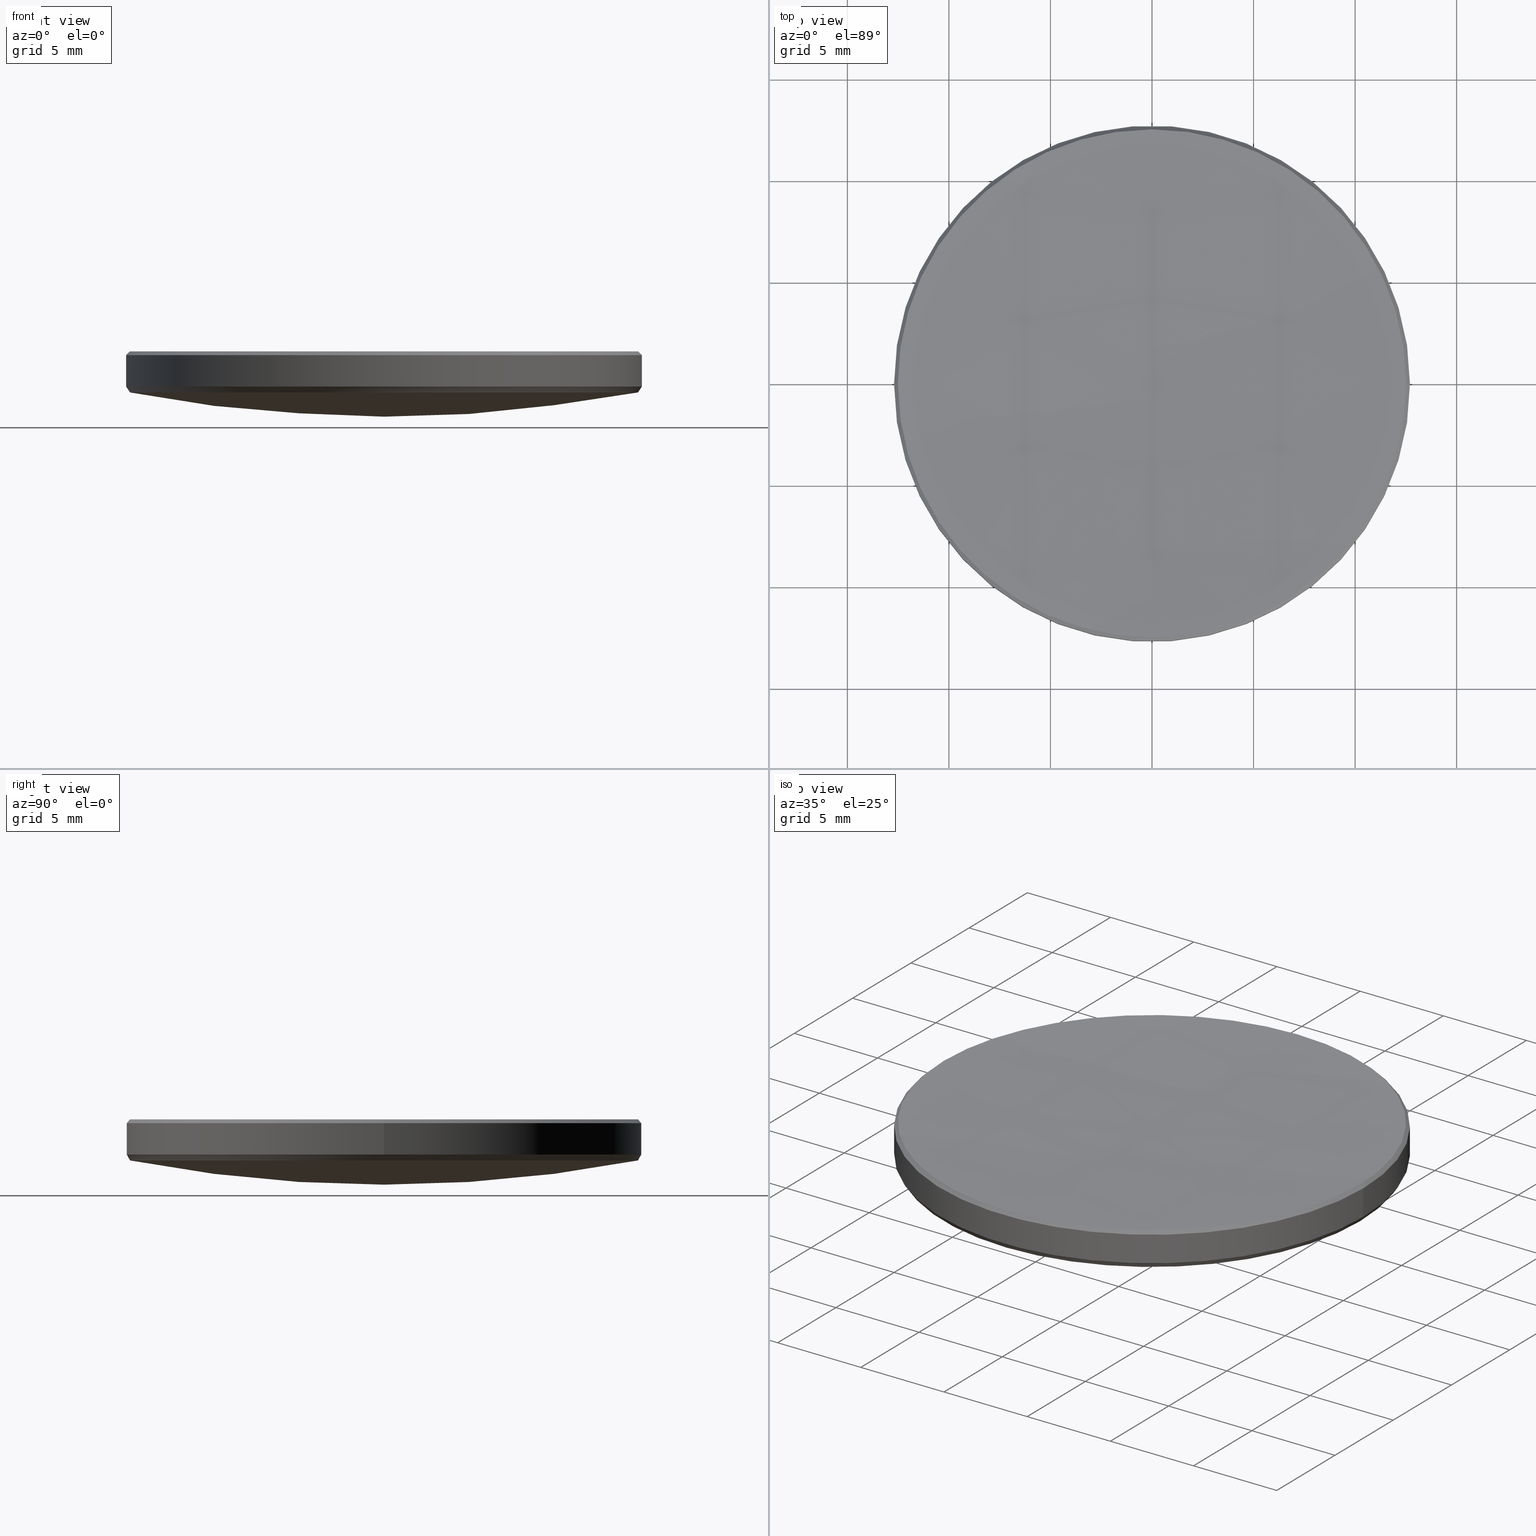
[diagram: canonical four-view strip — front | top / right | iso, engineering-drawing reading convention]
A machine part, canonical four-view strip (front | top / right | iso — engineering-drawing reading convention). The complete STEP part file that produces these views, byte-faithful:
ISO-10303-21;
HEADER;
FILE_DESCRIPTION (( 'STEP AP214' ),
    '1' );
FILE_NAME ('GLM1-025B-200.STEP',
    '2024-08-09T02:17:03',
    ( 'Windows User' ),
    ( 'P R C' ),
    'SwSTEP 2.0',
    'SolidWorks 2022',
    '' );
FILE_SCHEMA (( 'AUTOMOTIVE_DESIGN' ));
ENDSEC;

DATA;
#1 = ORIENTED_EDGE ( 'NONE', *, *, #102, .T. ) ;
#2 = VECTOR ( 'NONE', #239, 1000.000000000000114 ) ;
#3 = EDGE_LOOP ( 'NONE', ( #92, #139, #327, #42 ) ) ;
#4 = ORIENTED_EDGE ( 'NONE', *, *, #19, .F. ) ;
#5 = ADVANCED_FACE ( 'NONE', ( #67 ), #119, .F. ) ;
#6 = PRODUCT ( 'GLM1-025B-200', 'GLM1-025B-200', '', ( #312 ) ) ;
#7 = FACE_OUTER_BOUND ( 'NONE', #211, .T. ) ;
#8 = EDGE_CURVE ( 'NONE', #210, #113, #48, .T. ) ;
#9 = DIRECTION ( 'NONE',  ( 0.000000000000000000, 0.000000000000000000, -1.000000000000000000 ) ) ;
#10 = SURFACE_STYLE_FILL_AREA ( #188 ) ;
#11 = CARTESIAN_POINT ( 'NONE',  ( -12.51297231911478214, 0.000000000000000000, 5.987027680885242731 ) ) ;
#12 = DIRECTION ( 'NONE',  ( -0.000000000000000000, -0.000000000000000000, 1.000000000000000000 ) ) ;
#13 = PRODUCT_RELATED_PRODUCT_CATEGORY ( 'part', '', ( #6 ) ) ;
#14 =( LENGTH_UNIT ( ) NAMED_UNIT ( * ) SI_UNIT ( .MILLI., .METRE. ) );
#15 = ORIENTED_EDGE ( 'NONE', *, *, #183, .F. ) ;
#16 = CIRCLE ( 'NONE', #59, 12.50395849586555030 ) ;
#17 = ORIENTED_EDGE ( 'NONE', *, *, #44, .F. ) ;
#18 = DIRECTION ( 'NONE',  ( -0.000000000000000000, -0.000000000000000000, 1.000000000000000000 ) ) ;
#19 = EDGE_CURVE ( 'NONE', #309, #52, #87, .T. ) ;
#20 = AXIS2_PLACEMENT_3D ( 'NONE', #163, #328, #292 ) ;
#21 = LINE ( 'NONE', #151, #181 ) ;
#22 = DIRECTION ( 'NONE',  ( -0.000000000000000000, -0.000000000000000000, -1.000000000000000000 ) ) ;
#23 = EDGE_LOOP ( 'NONE', ( #311, #182, #55, #78 ) ) ;
#24 = DIRECTION ( 'NONE',  ( 1.000000000000000000, 0.000000000000000000, 0.000000000000000000 ) ) ;
#25 = ORIENTED_EDGE ( 'NONE', *, *, #183, .T. ) ;
#26 = ORIENTED_EDGE ( 'NONE', *, *, #123, .T. ) ;
#27 = APPLICATION_PROTOCOL_DEFINITION ( 'draft international standard', 'automotive_design', 1998, #233 ) ;
#28 = AXIS2_PLACEMENT_3D ( 'NONE', #252, #18, #49 ) ;
#29 = ORIENTED_EDGE ( 'NONE', *, *, #37, .T. ) ;
#30 = AXIS2_PLACEMENT_3D ( 'NONE', #222, #142, #36 ) ;
#31 = DIRECTION ( 'NONE',  ( 1.000000000000000000, 0.000000000000000000, 0.000000000000000000 ) ) ;
#32 = MECHANICAL_DESIGN_GEOMETRIC_PRESENTATION_REPRESENTATION (  '', ( #177 ), #161 ) ;
#33 = EDGE_CURVE ( 'NONE', #52, #309, #251, .T. ) ;
#34 = CARTESIAN_POINT ( 'NONE',  ( 0.000000000000000000, 0.000000000000000000, 4.253353967830220128 ) ) ;
#35 = UNCERTAINTY_MEASURE_WITH_UNIT (LENGTH_MEASURE( 1.000000000000000082E-05 ), #272, 'distance_accuracy_value', 'NONE');
#36 = DIRECTION ( 'NONE',  ( 0.000000000000000000, 1.000000000000000000, 0.000000000000000000 ) ) ;
#37 = EDGE_CURVE ( 'NONE', #283, #180, #212, .T. ) ;
#38 = DIRECTION ( 'NONE',  ( 0.000000000000000000, 0.000000000000000000, -1.000000000000000000 ) ) ;
#39 = DIRECTION ( 'NONE',  ( -1.000000000000000000, 0.000000000000000000, 0.000000000000000000 ) ) ;
#40 = PRODUCT_DEFINITION_CONTEXT ( 'detailed design', #233, 'design' ) ;
#41 = FILL_AREA_STYLE_COLOUR ( '', #166 ) ;
#42 = ORIENTED_EDGE ( 'NONE', *, *, #76, .T. ) ;
#43 = ORIENTED_EDGE ( 'NONE', *, *, #229, .F. ) ;
#44 = EDGE_CURVE ( 'NONE', #113, #219, #174, .T. ) ;
#45 = AXIS2_PLACEMENT_3D ( 'NONE', #254, #279, #329 ) ;
#46 = DIRECTION ( 'NONE',  ( -0.000000000000000000, -0.000000000000000000, -1.000000000000000000 ) ) ;
#47 = DIRECTION ( 'NONE',  ( -0.000000000000000000, -0.000000000000000000, 1.000000000000000000 ) ) ;
#48 = CIRCLE ( 'NONE', #120, 182.1899999999999977 ) ;
#49 = DIRECTION ( 'NONE',  ( 1.000000000000000000, 0.000000000000000000, 0.000000000000000000 ) ) ;
#50 = FACE_OUTER_BOUND ( 'NONE', #193, .T. ) ;
#51 = CONICAL_SURFACE ( 'NONE', #298, 12.69999999999999929, 0.5922108289621466071 ) ;
#52 = VERTEX_POINT ( 'NONE', #295 ) ;
#53 = ORIENTED_EDGE ( 'NONE', *, *, #293, .F. ) ;
#54 = DIRECTION ( 'NONE',  ( 1.000000000000000000, 0.000000000000000000, 0.000000000000000000 ) ) ;
#55 = ORIENTED_EDGE ( 'NONE', *, *, #229, .T. ) ;
#56 =( GEOMETRIC_REPRESENTATION_CONTEXT ( 3 ) GLOBAL_UNCERTAINTY_ASSIGNED_CONTEXT ( ( #199 ) ) GLOBAL_UNIT_ASSIGNED_CONTEXT ( ( #14, #296, #141 ) ) REPRESENTATION_CONTEXT ( 'NONE', 'WORKASPACE' ) );
#57 = CARTESIAN_POINT ( 'NONE',  ( 12.51297231911478214, 1.532397149842335037E-15, 5.987027680885242731 ) ) ;
#58 = CARTESIAN_POINT ( 'NONE',  ( 0.000000000000000000, 0.000000000000000000, 187.7468186791724918 ) ) ;
#59 = AXIS2_PLACEMENT_3D ( 'NONE', #135, #9, #134 ) ;
#60 = CARTESIAN_POINT ( 'NONE',  ( 0.000000000000000000, 0.000000000000000000, 68.91943083545942272 ) ) ;
#61 = AXIS2_PLACEMENT_3D ( 'NONE', #245, #12, #322 ) ;
#62 = ADVANCED_FACE ( 'NONE', ( #88 ), #197, .T. ) ;
#63 = CARTESIAN_POINT ( 'NONE',  ( 0.000000000000000000, 4.050519288179870232E-15, 2.769430835459427254 ) ) ;
#64 = AXIS2_PLACEMENT_3D ( 'NONE', #58, #136, #109 ) ;
#65 = CARTESIAN_POINT ( 'NONE',  ( -12.69999999999999929, 1.555301434917138433E-15, 4.253353967830220128 ) ) ;
#66 = SURFACE_STYLE_USAGE ( .BOTH. , #300 ) ;
#67 = FACE_OUTER_BOUND ( 'NONE', #3, .T. ) ;
#68 = EDGE_CURVE ( 'NONE', #116, #52, #299, .T. ) ;
#69 = CIRCLE ( 'NONE', #259, 12.50395849586555030 ) ;
#70 = CARTESIAN_POINT ( 'NONE',  ( 0.000000000000000000, 0.000000000000000000, 3.961956115965656444 ) ) ;
#71 = DIRECTION ( 'NONE',  ( 1.000000000000000000, 0.000000000000000000, 0.000000000000000000 ) ) ;
#72 = ADVANCED_FACE ( 'NONE', ( #268 ), #168, .T. ) ;
#73 = DIRECTION ( 'NONE',  ( 0.000000000000000000, 0.000000000000000000, -1.000000000000000000 ) ) ;
#74 = ORIENTED_EDGE ( 'NONE', *, *, #307, .F. ) ;
#75 = VERTEX_POINT ( 'NONE', #205 ) ;
#76 = EDGE_CURVE ( 'NONE', #313, #113, #310, .T. ) ;
#77 = VERTEX_POINT ( 'NONE', #280 ) ;
#78 = ORIENTED_EDGE ( 'NONE', *, *, #189, .T. ) ;
#79 = DIRECTION ( 'NONE',  ( -0.000000000000000000, -0.000000000000000000, 1.000000000000000000 ) ) ;
#80 = DIRECTION ( 'NONE',  ( -1.000000000000000000, 0.000000000000000000, 0.000000000000000000 ) ) ;
#81 = DIRECTION ( 'NONE',  ( 0.000000000000000000, 0.000000000000000000, -1.000000000000000000 ) ) ;
#82 = SURFACE_SIDE_STYLE ('',( #10 ) ) ;
#83 = CIRCLE ( 'NONE', #320, 12.50395849586555030 ) ;
#84 = DIRECTION ( 'NONE',  ( 1.000000000000000000, 0.000000000000000000, 0.000000000000000000 ) ) ;
#85 = FACE_OUTER_BOUND ( 'NONE', #23, .T. ) ;
#86 = DIRECTION ( 'NONE',  ( -1.000000000000000000, 1.224646799147353207E-16, 0.000000000000000000 ) ) ;
#87 = CIRCLE ( 'NONE', #277, 12.69999999999999929 ) ;
#88 = FACE_OUTER_BOUND ( 'NONE', #258, .T. ) ;
#89 = DIRECTION ( 'NONE',  ( 1.000000000000000000, 0.000000000000000000, 0.000000000000000000 ) ) ;
#90 = DIRECTION ( 'NONE',  ( -1.224646799147352961E-16, -1.000000000000000000, 0.000000000000000000 ) ) ;
#91 = CARTESIAN_POINT ( 'NONE',  ( 12.69999999999999929, 1.555301434917138433E-15, 4.253353967830220128 ) ) ;
#92 = ORIENTED_EDGE ( 'NONE', *, *, #8, .F. ) ;
#93 = ADVANCED_FACE ( 'NONE', ( #50 ), #225, .T. ) ;
#94 = CARTESIAN_POINT ( 'NONE',  ( 0.000000000000000000, 1.115592001683281265E-14, 5.556818679172486952 ) ) ;
#95 = CIRCLE ( 'NONE', #107, 12.69999999999999929 ) ;
#96 = DIRECTION ( 'NONE',  ( -1.000000000000000000, 0.000000000000000000, 0.000000000000000000 ) ) ;
#97 = PRODUCT_DEFINITION ( 'δ֪', '', #179, #40 ) ;
#98 = LINE ( 'NONE', #228, #275 ) ;
#99 = ORIENTED_EDGE ( 'NONE', *, *, #8, .T. ) ;
#100 = VERTEX_POINT ( 'NONE', #303 ) ;
#101 = CIRCLE ( 'NONE', #64, 182.1899999999999977 ) ;
#102 = EDGE_CURVE ( 'NONE', #180, #116, #69, .T. ) ;
#103 = ORIENTED_EDGE ( 'NONE', *, *, #204, .T. ) ;
#104 = AXIS2_PLACEMENT_3D ( 'NONE', #271, #244, #301 ) ;
#105 = ORIENTED_EDGE ( 'NONE', *, *, #123, .F. ) ;
#106 = CARTESIAN_POINT ( 'NONE',  ( 0.000000000000000000, 0.000000000000000000, 5.987027680885242731 ) ) ;
#107 = AXIS2_PLACEMENT_3D ( 'NONE', #165, #195, #84 ) ;
#108 = DIRECTION ( 'NONE',  ( 1.000000000000000000, 0.000000000000000000, 0.000000000000000000 ) ) ;
#109 = DIRECTION ( 'NONE',  ( 0.000000000000000000, 0.000000000000000000, -1.000000000000000000 ) ) ;
#110 = AXIS2_PLACEMENT_3D ( 'NONE', #128, #154, #305 ) ;
#111 = DIRECTION ( 'NONE',  ( 0.000000000000000000, 1.000000000000000000, 0.000000000000000000 ) ) ;
#112 = CARTESIAN_POINT ( 'NONE',  ( 0.000000000000000000, 0.000000000000000000, 4.253353967830220128 ) ) ;
#113 = VERTEX_POINT ( 'NONE', #172 ) ;
#114 = AXIS2_PLACEMENT_3D ( 'NONE', #117, #39, #111 ) ;
#115 = DIRECTION ( 'NONE',  ( -0.7071067811865507924, 0.000000000000000000, -0.7071067811865441310 ) ) ;
#116 = VERTEX_POINT ( 'NONE', #276 ) ;
#117 = CARTESIAN_POINT ( 'NONE',  ( 0.000000000000000000, 0.000000000000000000, 187.7468186791724918 ) ) ;
#118 = CIRCLE ( 'NONE', #290, 12.50395849586555030 ) ;
#119 = SPHERICAL_SURFACE ( 'NONE', #114, 182.1899999999999977 ) ;
#120 = AXIS2_PLACEMENT_3D ( 'NONE', #221, #326, #323 ) ;
#121 = DIRECTION ( 'NONE',  ( 0.5581967294551084535, 0.000000000000000000, 0.8297086303188730971 ) ) ;
#122 = ADVANCED_FACE ( 'NONE', ( #304 ), #148, .F. ) ;
#123 = EDGE_CURVE ( 'NONE', #75, #309, #21, .T. ) ;
#124 = CARTESIAN_POINT ( 'NONE',  ( 0.000000000000000000, 0.000000000000000000, 5.987027680885187664 ) ) ;
#125 = CIRCLE ( 'NONE', #143, 66.15000000000000568 ) ;
#126 = CARTESIAN_POINT ( 'NONE',  ( 0.000000000000000000, 0.000000000000000000, 5.800000000000027356 ) ) ;
#127 = ORIENTED_EDGE ( 'NONE', *, *, #33, .F. ) ;
#128 = CARTESIAN_POINT ( 'NONE',  ( 0.000000000000000000, 0.000000000000000000, 187.7468186791724918 ) ) ;
#129 = ORIENTED_EDGE ( 'NONE', *, *, #248, .T. ) ;
#130 = EDGE_CURVE ( 'NONE', #273, #313, #203, .T. ) ;
#131 = ORIENTED_EDGE ( 'NONE', *, *, #102, .F. ) ;
#132 = AXIS2_PLACEMENT_3D ( 'NONE', #126, #150, #274 ) ;
#133 = ORIENTED_EDGE ( 'NONE', *, *, #204, .F. ) ;
#134 = DIRECTION ( 'NONE',  ( 1.000000000000000000, 0.000000000000000000, 0.000000000000000000 ) ) ;
#135 = CARTESIAN_POINT ( 'NONE',  ( 0.000000000000000000, 0.000000000000000000, 3.961956115965656444 ) ) ;
#136 = DIRECTION ( 'NONE',  ( 1.000000000000000000, 0.000000000000000000, 0.000000000000000000 ) ) ;
#137 = ADVANCED_FACE ( 'NONE', ( #257 ), #149, .T. ) ;
#138 = CARTESIAN_POINT ( 'NONE',  ( 12.50395849586555030, 0.000000000000000000, 3.961956115965656444 ) ) ;
#139 = ORIENTED_EDGE ( 'NONE', *, *, #278, .T. ) ;
#140 = AXIS2_PLACEMENT_3D ( 'NONE', #34, #79, #31 ) ;
#141 =( NAMED_UNIT ( * ) SI_UNIT ( $, .STERADIAN. ) SOLID_ANGLE_UNIT ( ) );
#142 = DIRECTION ( 'NONE',  ( -1.000000000000000000, 0.000000000000000000, 0.000000000000000000 ) ) ;
#143 = AXIS2_PLACEMENT_3D ( 'NONE', #289, #238, #38 ) ;
#144 = DIRECTION ( 'NONE',  ( -1.000000000000000000, 0.000000000000000000, 0.000000000000000000 ) ) ;
#145 = FILL_AREA_STYLE ('',( #41 ) ) ;
#146 = ORIENTED_EDGE ( 'NONE', *, *, #19, .T. ) ;
#147 = CONICAL_SURFACE ( 'NONE', #140, 12.69999999999999929, 0.5922108289621466071 ) ;
#148 = SPHERICAL_SURFACE ( 'NONE', #110, 182.1899999999999977 ) ;
#149 = CONICAL_SURFACE ( 'NONE', #45, 12.51297231911478214, 0.7853981633974530530 ) ;
#150 = DIRECTION ( 'NONE',  ( 0.000000000000000000, 0.000000000000000000, -1.000000000000000000 ) ) ;
#151 = CARTESIAN_POINT ( 'NONE',  ( 12.69999999999999929, 1.555301434917138433E-15, 10.00000000000000000 ) ) ;
#152 = PRESENTATION_LAYER_ASSIGNMENT (  '', '', ( #243 ) ) ;
#153 = ORIENTED_EDGE ( 'NONE', *, *, #162, .T. ) ;
#154 = DIRECTION ( 'NONE',  ( -1.000000000000000000, 0.000000000000000000, 0.000000000000000000 ) ) ;
#155 = EDGE_CURVE ( 'NONE', #75, #77, #171, .T. ) ;
#156 = ORIENTED_EDGE ( 'NONE', *, *, #278, .F. ) ;
#157 = ORIENTED_EDGE ( 'NONE', *, *, #253, .T. ) ;
#158 = ORIENTED_EDGE ( 'NONE', *, *, #44, .T. ) ;
#159 = SHAPE_DEFINITION_REPRESENTATION ( #287, #173 ) ;
#160 = CARTESIAN_POINT ( 'NONE',  ( 12.51297231911478569, 1.543849292379736932E-15, 5.987027680885187664 ) ) ;
#161 =( GEOMETRIC_REPRESENTATION_CONTEXT ( 3 ) GLOBAL_UNCERTAINTY_ASSIGNED_CONTEXT ( ( #223 ) ) GLOBAL_UNIT_ASSIGNED_CONTEXT ( ( #291, #263, #186 ) ) REPRESENTATION_CONTEXT ( 'NONE', 'WORKASPACE' ) );
#162 = EDGE_CURVE ( 'NONE', #77, #52, #98, .T. ) ;
#163 = CARTESIAN_POINT ( 'NONE',  ( 0.000000000000000000, 0.000000000000000000, 4.253353967830220128 ) ) ;
#164 = AXIS2_PLACEMENT_3D ( 'NONE', #124, #330, #302 ) ;
#165 = CARTESIAN_POINT ( 'NONE',  ( 0.000000000000000000, 0.000000000000000000, 5.800000000000027356 ) ) ;
#166 = COLOUR_RGB ( '',1.000000000000000000, 1.000000000000000000, 1.000000000000000000 ) ;
#167 = CARTESIAN_POINT ( 'NONE',  ( -12.51297231911478569, 0.000000000000000000, 5.987027680885187664 ) ) ;
#168 = CYLINDRICAL_SURFACE ( 'NONE', #104, 12.69999999999999929 ) ;
#169 = AXIS2_PLACEMENT_3D ( 'NONE', #286, #284, #54 ) ;
#170 = CARTESIAN_POINT ( 'NONE',  ( 12.69999999999999929, 0.000000000000000000, 4.253353967830220128 ) ) ;
#171 = CIRCLE ( 'NONE', #132, 12.69999999999999929 ) ;
#172 = CARTESIAN_POINT ( 'NONE',  ( -1.532397149842306047E-15, -12.51297231911454411, 5.987027680885187664 ) ) ;
#173 = ADVANCED_BREP_SHAPE_REPRESENTATION ( 'GLM1-025B-200', ( #226, #169 ), #56 ) ;
#174 = CIRCLE ( 'NONE', #61, 12.51297231911478569 ) ;
#175 = DIRECTION ( 'NONE',  ( 1.000000000000000000, 0.000000000000000000, 0.000000000000000000 ) ) ;
#176 = DIRECTION ( 'NONE',  ( 0.000000000000000000, 0.000000000000000000, -1.000000000000000000 ) ) ;
#177 = STYLED_ITEM ( 'NONE', ( #190 ), #226 ) ;
#178 = EDGE_LOOP ( 'NONE', ( #332, #131, #260, #103, #127 ) ) ;
#179 = PRODUCT_DEFINITION_FORMATION_WITH_SPECIFIED_SOURCE ( '�κ�', '', #6, .NOT_KNOWN. ) ;
#180 = VERTEX_POINT ( 'NONE', #331 ) ;
#181 = VECTOR ( 'NONE', #22, 1000.000000000000000 ) ;
#182 = ORIENTED_EDGE ( 'NONE', *, *, #293, .T. ) ;
#183 = EDGE_CURVE ( 'NONE', #219, #273, #209, .T. ) ;
#184 = MECHANICAL_DESIGN_GEOMETRIC_PRESENTATION_REPRESENTATION (  '', ( #243 ), #266 ) ;
#185 = DIRECTION ( 'NONE',  ( 0.000000000000000000, 1.000000000000000000, 0.000000000000000000 ) ) ;
#186 =( NAMED_UNIT ( * ) SI_UNIT ( $, .STERADIAN. ) SOLID_ANGLE_UNIT ( ) );
#187 = APPLICATION_CONTEXT ( 'automotive_design' ) ;
#188 = FILL_AREA_STYLE ('',( #265 ) ) ;
#189 = EDGE_CURVE ( 'NONE', #213, #180, #83, .T. ) ;
#190 = PRESENTATION_STYLE_ASSIGNMENT (( #215 ) ) ;
#191 = VECTOR ( 'NONE', #121, 1000.000000000000000 ) ;
#192 = LINE ( 'NONE', #57, #2 ) ;
#193 = EDGE_LOOP ( 'NONE', ( #105, #236, #153, #297 ) ) ;
#194 = CLOSED_SHELL ( 'NONE', ( #137, #314, #122, #62, #72, #93, #282, #5, #261, #288 ) ) ;
#195 = DIRECTION ( 'NONE',  ( 0.000000000000000000, 0.000000000000000000, -1.000000000000000000 ) ) ;
#196 = EDGE_LOOP ( 'NONE', ( #156, #99, #158, #25 ) ) ;
#197 = SPHERICAL_SURFACE ( 'NONE', #30, 66.15000000000000568 ) ;
#198 = CONICAL_SURFACE ( 'NONE', #214, 12.51297231911478214, 0.7853981633974530530 ) ;
#199 = UNCERTAINTY_MEASURE_WITH_UNIT (LENGTH_MEASURE( 1.000000000000000082E-05 ), #14, 'distance_accuracy_value', 'NONE');
#200 = SURFACE_STYLE_FILL_AREA ( #145 ) ;
#201 = DIRECTION ( 'NONE',  ( -0.5581967294551084535, 6.835938380217195988E-17, 0.8297086303188730971 ) ) ;
#202 = LINE ( 'NONE', #170, #191 ) ;
#203 = CIRCLE ( 'NONE', #240, 12.51297231911478569 ) ;
#204 = EDGE_CURVE ( 'NONE', #213, #309, #202, .T. ) ;
#205 = CARTESIAN_POINT ( 'NONE',  ( 12.69999999999999929, 1.555301434917138433E-15, 5.800000000000027356 ) ) ;
#206 = CARTESIAN_POINT ( 'NONE',  ( 0.000000000000000000, 0.000000000000000000, 10.00000000000000000 ) ) ;
#207 = CARTESIAN_POINT ( 'NONE',  ( 0.000000000000000000, 0.000000000000000000, 3.961956115965656444 ) ) ;
#208 = ORIENTED_EDGE ( 'NONE', *, *, #319, .T. ) ;
#209 = CIRCLE ( 'NONE', #28, 12.51297231911478569 ) ;
#210 = VERTEX_POINT ( 'NONE', #94 ) ;
#211 = EDGE_LOOP ( 'NONE', ( #224, #17, #231, #234, #306 ) ) ;
#212 = CIRCLE ( 'NONE', #324, 66.15000000000000568 ) ;
#213 = VERTEX_POINT ( 'NONE', #138 ) ;
#214 = AXIS2_PLACEMENT_3D ( 'NONE', #106, #315, #80 ) ;
#215 = SURFACE_STYLE_USAGE ( .BOTH. , #82 ) ;
#216 = DIRECTION ( 'NONE',  ( -1.000000000000000000, 0.000000000000000000, 0.000000000000000000 ) ) ;
#217 = CARTESIAN_POINT ( 'NONE',  ( 0.000000000000000000, 0.000000000000000000, 4.253353967830220128 ) ) ;
#218 = LINE ( 'NONE', #11, #255 ) ;
#219 = VERTEX_POINT ( 'NONE', #160 ) ;
#220 = VECTOR ( 'NONE', #201, 1000.000000000000000 ) ;
#221 = CARTESIAN_POINT ( 'NONE',  ( 0.000000000000000000, 0.000000000000000000, 187.7468186791724918 ) ) ;
#222 = CARTESIAN_POINT ( 'NONE',  ( 0.000000000000000000, 0.000000000000000000, 68.91943083545942272 ) ) ;
#223 = UNCERTAINTY_MEASURE_WITH_UNIT (LENGTH_MEASURE( 1.000000000000000082E-05 ), #291, 'distance_accuracy_value', 'NONE');
#224 = ORIENTED_EDGE ( 'NONE', *, *, #248, .F. ) ;
#225 = CYLINDRICAL_SURFACE ( 'NONE', #317, 12.69999999999999929 ) ;
#226 = MANIFOLD_SOLID_BREP ( '����1', #194 ) ;
#227 = DIRECTION ( 'NONE',  ( -0.000000000000000000, -0.000000000000000000, -1.000000000000000000 ) ) ;
#228 = CARTESIAN_POINT ( 'NONE',  ( -12.69999999999999929, 0.000000000000000000, 10.00000000000000000 ) ) ;
#229 = EDGE_CURVE ( 'NONE', #100, #213, #118, .T. ) ;
#230 = ORIENTED_EDGE ( 'NONE', *, *, #319, .F. ) ;
#231 = ORIENTED_EDGE ( 'NONE', *, *, #76, .F. ) ;
#232 = PRESENTATION_LAYER_ASSIGNMENT (  '', '', ( #177 ) ) ;
#233 = APPLICATION_CONTEXT ( 'automotive_design' ) ;
#234 = ORIENTED_EDGE ( 'NONE', *, *, #307, .T. ) ;
#235 = APPLICATION_PROTOCOL_DEFINITION ( 'draft international standard', 'automotive_design', 1998, #187 ) ;
#236 = ORIENTED_EDGE ( 'NONE', *, *, #155, .T. ) ;
#237 = CARTESIAN_POINT ( 'NONE',  ( 0.000000000000000000, 0.000000000000000000, 68.91943083545942272 ) ) ;
#238 = DIRECTION ( 'NONE',  ( 1.000000000000000000, -0.000000000000000000, 0.000000000000000000 ) ) ;
#239 = DIRECTION ( 'NONE',  ( 0.7071067811865507924, 8.659560562354974766E-17, -0.7071067811865441310 ) ) ;
#240 = AXIS2_PLACEMENT_3D ( 'NONE', #250, #47, #175 ) ;
#241 = EDGE_LOOP ( 'NONE', ( #247, #256, #4, #133, #43 ) ) ;
#242 = PRESENTATION_STYLE_ASSIGNMENT (( #66 ) ) ;
#243 = STYLED_ITEM ( 'NONE', ( #242 ), #173 ) ;
#244 = DIRECTION ( 'NONE',  ( -0.000000000000000000, -0.000000000000000000, -1.000000000000000000 ) ) ;
#245 = CARTESIAN_POINT ( 'NONE',  ( 0.000000000000000000, 0.000000000000000000, 5.987027680885187664 ) ) ;
#246 = DIRECTION ( 'NONE',  ( -0.000000000000000000, -0.000000000000000000, 1.000000000000000000 ) ) ;
#247 = ORIENTED_EDGE ( 'NONE', *, *, #253, .F. ) ;
#248 = EDGE_CURVE ( 'NONE', #219, #75, #192, .T. ) ;
#249 = DIRECTION ( 'NONE',  ( -0.000000000000000000, -0.000000000000000000, 1.000000000000000000 ) ) ;
#250 = CARTESIAN_POINT ( 'NONE',  ( 0.000000000000000000, 0.000000000000000000, 5.987027680885187664 ) ) ;
#251 = CIRCLE ( 'NONE', #20, 12.69999999999999929 ) ;
#252 = CARTESIAN_POINT ( 'NONE',  ( 0.000000000000000000, 0.000000000000000000, 5.987027680885187664 ) ) ;
#253 = EDGE_CURVE ( 'NONE', #116, #100, #16, .T. ) ;
#254 = CARTESIAN_POINT ( 'NONE',  ( 0.000000000000000000, 0.000000000000000000, 5.987027680885242731 ) ) ;
#255 = VECTOR ( 'NONE', #115, 1000.000000000000114 ) ;
#256 = ORIENTED_EDGE ( 'NONE', *, *, #68, .T. ) ;
#257 = FACE_OUTER_BOUND ( 'NONE', #270, .T. ) ;
#258 = EDGE_LOOP ( 'NONE', ( #53, #29, #1, #157 ) ) ;
#259 = AXIS2_PLACEMENT_3D ( 'NONE', #70, #176, #71 ) ;
#260 = ORIENTED_EDGE ( 'NONE', *, *, #189, .F. ) ;
#261 = ADVANCED_FACE ( 'NONE', ( #264 ), #147, .T. ) ;
#262 = ORIENTED_EDGE ( 'NONE', *, *, #130, .F. ) ;
#263 =( NAMED_UNIT ( * ) PLANE_ANGLE_UNIT ( ) SI_UNIT ( $, .RADIAN. ) );
#264 = FACE_OUTER_BOUND ( 'NONE', #178, .T. ) ;
#265 = FILL_AREA_STYLE_COLOUR ( '', #308 ) ;
#266 =( GEOMETRIC_REPRESENTATION_CONTEXT ( 3 ) GLOBAL_UNCERTAINTY_ASSIGNED_CONTEXT ( ( #35 ) ) GLOBAL_UNIT_ASSIGNED_CONTEXT ( ( #272, #294, #267 ) ) REPRESENTATION_CONTEXT ( 'NONE', 'WORKASPACE' ) );
#267 =( NAMED_UNIT ( * ) SI_UNIT ( $, .STERADIAN. ) SOLID_ANGLE_UNIT ( ) );
#268 = FACE_OUTER_BOUND ( 'NONE', #285, .T. ) ;
#269 = AXIS2_PLACEMENT_3D ( 'NONE', #237, #216, #185 ) ;
#270 = EDGE_LOOP ( 'NONE', ( #15, #129, #230, #74, #262 ) ) ;
#271 = CARTESIAN_POINT ( 'NONE',  ( 0.000000000000000000, 0.000000000000000000, 10.00000000000000000 ) ) ;
#272 =( LENGTH_UNIT ( ) NAMED_UNIT ( * ) SI_UNIT ( .MILLI., .METRE. ) );
#273 = VERTEX_POINT ( 'NONE', #321 ) ;
#274 = DIRECTION ( 'NONE',  ( 1.000000000000000000, 0.000000000000000000, 0.000000000000000000 ) ) ;
#275 = VECTOR ( 'NONE', #46, 1000.000000000000000 ) ;
#276 = CARTESIAN_POINT ( 'NONE',  ( -12.50395849586555030, 1.543297354890224221E-15, 3.961956115965656444 ) ) ;
#277 = AXIS2_PLACEMENT_3D ( 'NONE', #217, #249, #144 ) ;
#278 = EDGE_CURVE ( 'NONE', #210, #273, #101, .T. ) ;
#279 = DIRECTION ( 'NONE',  ( 0.000000000000000000, 0.000000000000000000, -1.000000000000000000 ) ) ;
#280 = CARTESIAN_POINT ( 'NONE',  ( -12.69999999999999929, 0.000000000000000000, 5.800000000000027356 ) ) ;
#281 = ORIENTED_EDGE ( 'NONE', *, *, #162, .F. ) ;
#282 = ADVANCED_FACE ( 'NONE', ( #85 ), #318, .T. ) ;
#283 = VERTEX_POINT ( 'NONE', #63 ) ;
#284 = DIRECTION ( 'NONE',  ( 0.000000000000000000, 0.000000000000000000, 1.000000000000000000 ) ) ;
#285 = EDGE_LOOP ( 'NONE', ( #208, #26, #146, #281 ) ) ;
#286 = CARTESIAN_POINT ( 'NONE',  ( 0.000000000000000000, 0.000000000000000000, 0.000000000000000000 ) ) ;
#287 = PRODUCT_DEFINITION_SHAPE ( 'NONE', 'NONE',  #97 ) ;
#288 = ADVANCED_FACE ( 'NONE', ( #7 ), #198, .T. ) ;
#289 = CARTESIAN_POINT ( 'NONE',  ( 0.000000000000000000, 0.000000000000000000, 68.91943083545942272 ) ) ;
#290 = AXIS2_PLACEMENT_3D ( 'NONE', #316, #81, #108 ) ;
#291 =( LENGTH_UNIT ( ) NAMED_UNIT ( * ) SI_UNIT ( .MILLI., .METRE. ) );
#292 = DIRECTION ( 'NONE',  ( -1.000000000000000000, 0.000000000000000000, 0.000000000000000000 ) ) ;
#293 = EDGE_CURVE ( 'NONE', #283, #100, #125, .T. ) ;
#294 =( NAMED_UNIT ( * ) PLANE_ANGLE_UNIT ( ) SI_UNIT ( $, .RADIAN. ) );
#295 = CARTESIAN_POINT ( 'NONE',  ( -12.69999999999999929, 0.000000000000000000, 4.253353967830220128 ) ) ;
#296 =( NAMED_UNIT ( * ) PLANE_ANGLE_UNIT ( ) SI_UNIT ( $, .RADIAN. ) );
#297 = ORIENTED_EDGE ( 'NONE', *, *, #33, .T. ) ;
#298 = AXIS2_PLACEMENT_3D ( 'NONE', #112, #246, #89 ) ;
#299 = LINE ( 'NONE', #65, #220 ) ;
#300 = SURFACE_SIDE_STYLE ('',( #200 ) ) ;
#301 = DIRECTION ( 'NONE',  ( -1.000000000000000000, 0.000000000000000000, 0.000000000000000000 ) ) ;
#302 = DIRECTION ( 'NONE',  ( 1.000000000000000000, 0.000000000000000000, 0.000000000000000000 ) ) ;
#303 = CARTESIAN_POINT ( 'NONE',  ( 0.000000000000000000, 12.50395849586554675, 3.961956115965656444 ) ) ;
#304 = FACE_OUTER_BOUND ( 'NONE', #196, .T. ) ;
#305 = DIRECTION ( 'NONE',  ( 0.000000000000000000, 1.000000000000000000, 0.000000000000000000 ) ) ;
#306 = ORIENTED_EDGE ( 'NONE', *, *, #155, .F. ) ;
#307 = EDGE_CURVE ( 'NONE', #313, #77, #218, .T. ) ;
#308 = COLOUR_RGB ( '',1.000000000000000000, 1.000000000000000000, 1.000000000000000000 ) ;
#309 = VERTEX_POINT ( 'NONE', #91 ) ;
#310 = CIRCLE ( 'NONE', #164, 12.51297231911478569 ) ;
#311 = ORIENTED_EDGE ( 'NONE', *, *, #37, .F. ) ;
#312 = PRODUCT_CONTEXT ( 'NONE', #187, 'mechanical' ) ;
#313 = VERTEX_POINT ( 'NONE', #167 ) ;
#314 = ADVANCED_FACE ( 'NONE', ( #325 ), #51, .T. ) ;
#315 = DIRECTION ( 'NONE',  ( 0.000000000000000000, 0.000000000000000000, -1.000000000000000000 ) ) ;
#316 = CARTESIAN_POINT ( 'NONE',  ( 0.000000000000000000, 0.000000000000000000, 3.961956115965656444 ) ) ;
#317 = AXIS2_PLACEMENT_3D ( 'NONE', #206, #227, #96 ) ;
#318 = SPHERICAL_SURFACE ( 'NONE', #269, 66.15000000000000568 ) ;
#319 = EDGE_CURVE ( 'NONE', #77, #75, #95, .T. ) ;
#320 = AXIS2_PLACEMENT_3D ( 'NONE', #207, #73, #24 ) ;
#321 = CARTESIAN_POINT ( 'NONE',  ( 0.000000000000000000, 12.51297231911454411, 5.987027680885187664 ) ) ;
#322 = DIRECTION ( 'NONE',  ( 1.000000000000000000, 0.000000000000000000, 0.000000000000000000 ) ) ;
#323 = DIRECTION ( 'NONE',  ( -1.224646799147352961E-16, -1.000000000000000000, 0.000000000000000000 ) ) ;
#324 = AXIS2_PLACEMENT_3D ( 'NONE', #60, #86, #90 ) ;
#325 = FACE_OUTER_BOUND ( 'NONE', #241, .T. ) ;
#326 = DIRECTION ( 'NONE',  ( -1.000000000000000000, 1.224646799147353207E-16, 0.000000000000000000 ) ) ;
#327 = ORIENTED_EDGE ( 'NONE', *, *, #130, .T. ) ;
#328 = DIRECTION ( 'NONE',  ( -0.000000000000000000, -0.000000000000000000, 1.000000000000000000 ) ) ;
#329 = DIRECTION ( 'NONE',  ( -1.000000000000000000, 0.000000000000000000, 0.000000000000000000 ) ) ;
#330 = DIRECTION ( 'NONE',  ( -0.000000000000000000, -0.000000000000000000, 1.000000000000000000 ) ) ;
#331 = CARTESIAN_POINT ( 'NONE',  ( -1.531293274863309419E-15, -12.50395849586554675, 3.961956115965656444 ) ) ;
#332 = ORIENTED_EDGE ( 'NONE', *, *, #68, .F. ) ;
ENDSEC;
END-ISO-10303-21;
